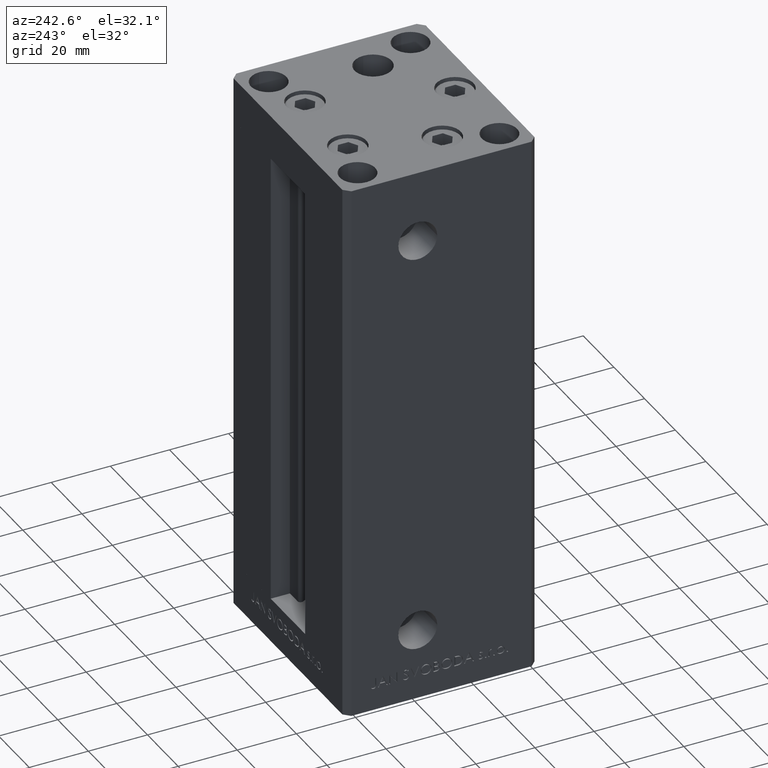
[diagram: clean part render]
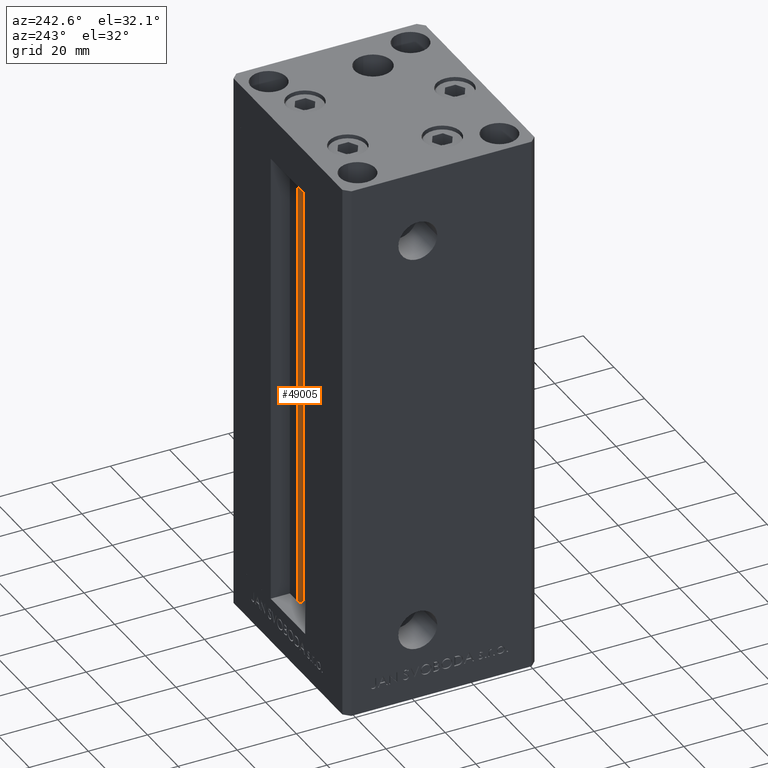
[diagram: same view with one face highlighted and labeled with its STEP entity id]
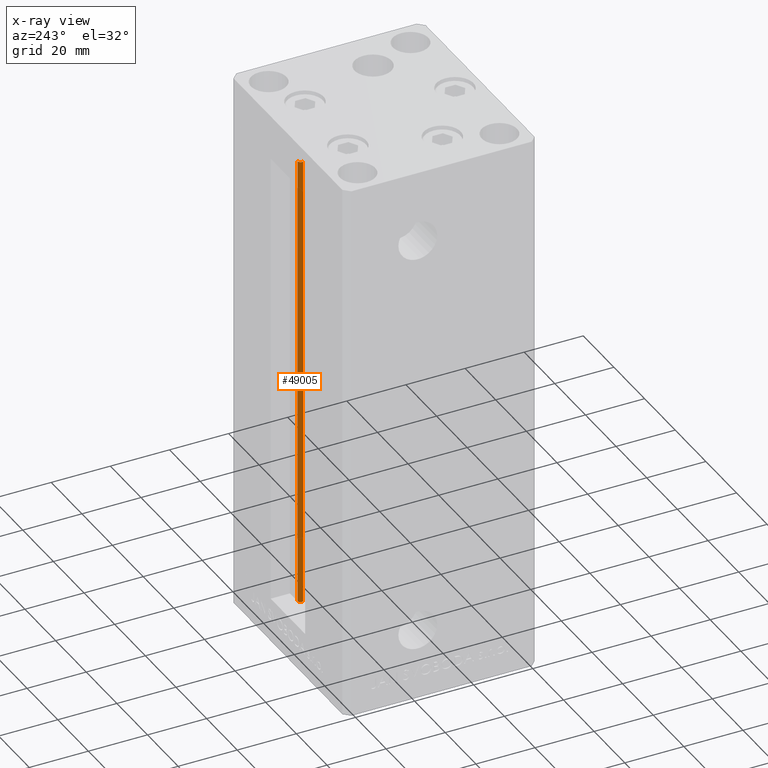
[diagram: x-ray of the same camera — body ghosted, the highlighted face saturated]
A machine part, auxiliary view. The second image highlights one B-rep face of the part: STEP entity #49005.
The next image is the same camera in x-ray: the body ghosted, the highlighted face saturated — about 0% of this face is hidden behind the body in this view.
In plain terms, the highlighted cylindrical surface (edge-blend (fillet) strip) has radius 0.9333 mm, axis along (0, 0, 1).
Its self-contained STEP definition (entity closure, byte-faithful):
#492 = VERTEX_POINT ( 'NONE', #36228 ) ;
#3678 = LINE ( 'NONE', #30316, #17746 ) ;
#4713 = VECTOR ( 'NONE', #46623, 1000.000000000000000 ) ;
#4776 = EDGE_CURVE ( 'NONE', #46863, #18130, #30568, .T. ) ;
#7619 = CARTESIAN_POINT ( 'NONE',  ( 6.183333333334001480, 25.99999999999999289, 0.000000000000000000 ) ) ;
#7628 = CIRCLE ( 'NONE', #34120, 0.9333333333340008142 ) ;
#9537 = VERTEX_POINT ( 'NONE', #11973 ) ;
#10287 = DIRECTION ( 'NONE',  ( 1.000000000000000000, 0.000000000000000000, 0.000000000000000000 ) ) ;
#11733 = ORIENTED_EDGE ( 'NONE', *, *, #46397, .T. ) ;
#11973 = CARTESIAN_POINT ( 'NONE',  ( 5.375042956467947164, 24.59999999999899245, 0.000000000000000000 ) ) ;
#12106 = DIRECTION ( 'NONE',  ( 1.000000000000000000, 0.000000000000000000, 0.000000000000000000 ) ) ;
#15877 = CARTESIAN_POINT ( 'NONE',  ( 6.183333333334001480, 25.06666666666599141, 156.0000000000000000 ) ) ;
#15919 = CARTESIAN_POINT ( 'NONE',  ( 6.183333333334001480, 25.99999999999999289, 156.0000000000000000 ) ) ;
#16200 = AXIS2_PLACEMENT_3D ( 'NONE', #29414, #21875, #10287 ) ;
#17746 = VECTOR ( 'NONE', #34325, 1000.000000000000000 ) ;
#18130 = VERTEX_POINT ( 'NONE', #15919 ) ;
#20919 = DIRECTION ( 'NONE',  ( -0.000000000000000000, -0.000000000000000000, -1.000000000000000000 ) ) ;
#21385 = CIRCLE ( 'NONE', #39026, 0.9333333333340008142 ) ;
#21875 = DIRECTION ( 'NONE',  ( -0.000000000000000000, -0.000000000000000000, 1.000000000000000000 ) ) ;
#22977 = ORIENTED_EDGE ( 'NONE', *, *, #31545, .T. ) ;
#23469 = EDGE_LOOP ( 'NONE', ( #28352, #45780, #11733, #22977 ) ) ;
#25126 = EDGE_CURVE ( 'NONE', #9537, #46863, #7628, .T. ) ;
#28218 = DIRECTION ( 'NONE',  ( 1.000000000000000000, 0.000000000000000000, 0.000000000000000000 ) ) ;
#28352 = ORIENTED_EDGE ( 'NONE', *, *, #4776, .F. ) ;
#29414 = CARTESIAN_POINT ( 'NONE',  ( 6.183333333334001480, 25.06666666666599141, 0.000000000000000000 ) ) ;
#30316 = CARTESIAN_POINT ( 'NONE',  ( 5.375042956467947164, 24.59999999999899245, 0.000000000000000000 ) ) ;
#30568 = LINE ( 'NONE', #30816, #4713 ) ;
#30816 = CARTESIAN_POINT ( 'NONE',  ( 6.183333333334001480, 25.99999999999999289, 0.000000000000000000 ) ) ;
#31232 = DIRECTION ( 'NONE',  ( 0.000000000000000000, 0.000000000000000000, -1.000000000000000000 ) ) ;
#31545 = EDGE_CURVE ( 'NONE', #492, #18130, #21385, .T. ) ;
#34120 = AXIS2_PLACEMENT_3D ( 'NONE', #47052, #20919, #28218 ) ;
#34325 = DIRECTION ( 'NONE',  ( -0.000000000000000000, -0.000000000000000000, 1.000000000000000000 ) ) ;
#36228 = CARTESIAN_POINT ( 'NONE',  ( 5.375042956467948052, 24.59999999999899245, 156.0000000000000000 ) ) ;
#39026 = AXIS2_PLACEMENT_3D ( 'NONE', #15877, #31232, #12106 ) ;
#44231 = FACE_OUTER_BOUND ( 'NONE', #23469, .T. ) ;
#44968 = CYLINDRICAL_SURFACE ( 'NONE', #16200, 0.9333333333340008142 ) ;
#45780 = ORIENTED_EDGE ( 'NONE', *, *, #25126, .F. ) ;
#46397 = EDGE_CURVE ( 'NONE', #9537, #492, #3678, .T. ) ;
#46623 = DIRECTION ( 'NONE',  ( -0.000000000000000000, -0.000000000000000000, 1.000000000000000000 ) ) ;
#46863 = VERTEX_POINT ( 'NONE', #7619 ) ;
#47052 = CARTESIAN_POINT ( 'NONE',  ( 6.183333333334001480, 25.06666666666599141, 0.000000000000000000 ) ) ;
#49005 = ADVANCED_FACE ( 'NONE', ( #44231 ), #44968, .T. ) ;